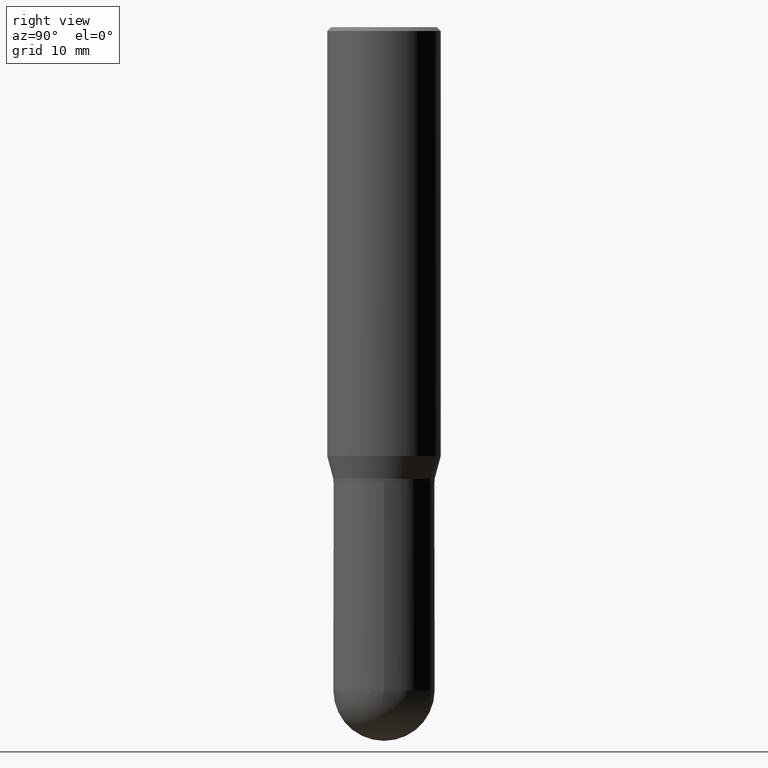
[diagram: clean part render]
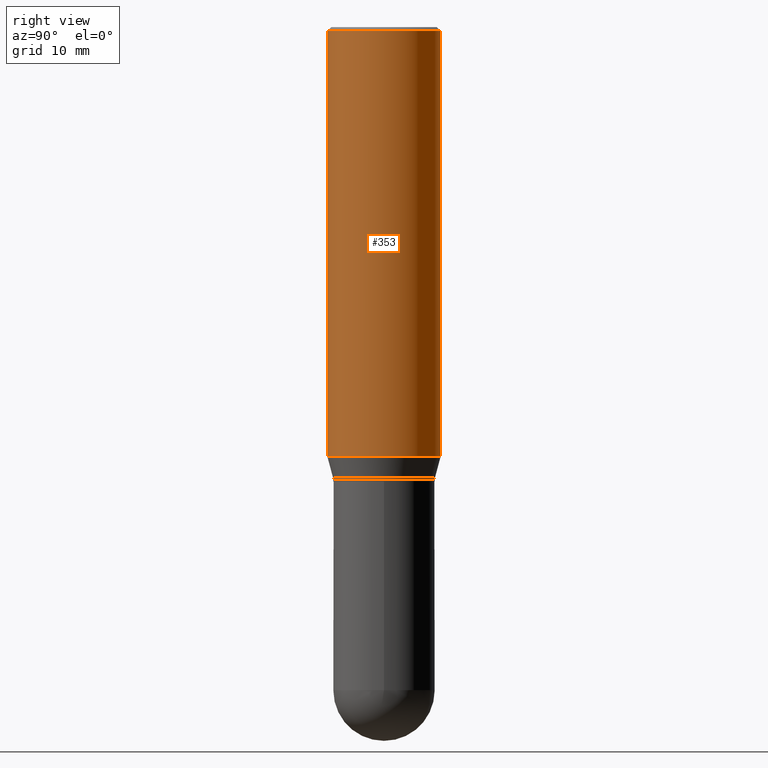
[diagram: same view with one face highlighted and labeled with its STEP entity id]
A machine part, right view. The second image highlights one B-rep face of the part: STEP entity #353.
In plain terms, the highlighted cylindrical surface (partial cylindrical patch) has radius 5.5562 mm, axis along (-0, 0, 1).
Its self-contained STEP definition (entity closure, byte-faithful):
#37 = VERTEX_POINT ( 'NONE', #159 ) ;
#54 = VECTOR ( 'NONE', #158, 39.37007874015748143 ) ;
#64 = CARTESIAN_POINT ( 'NONE',  ( 0.000000000000000000, 0.000000000000000000, 0.000000000000000000 ) ) ;
#69 = AXIS2_PLACEMENT_3D ( 'NONE', #257, #385, #150 ) ;
#96 = ORIENTED_EDGE ( 'NONE', *, *, #192, .T. ) ;
#99 = CARTESIAN_POINT ( 'NONE',  ( 4.041030628052402903E-29, -5.769709499966830493E-15, -1.652483408562509748 ) ) ;
#101 = CYLINDRICAL_SURFACE ( 'NONE', #209, 0.2187500000000000000 ) ;
#130 = VERTEX_POINT ( 'NONE', #263 ) ;
#132 = CARTESIAN_POINT ( 'NONE',  ( 1.554312234475259191E-15, 0.2187499999999998890, -0.01500000000000087721 ) ) ;
#134 = AXIS2_PLACEMENT_3D ( 'NONE', #99, #340, #297 ) ;
#147 = CARTESIAN_POINT ( 'NONE',  ( 1.554312234475218762E-15, 0.2187500000000000000, -7.637740546004402196E-16 ) ) ;
#150 = DIRECTION ( 'NONE',  ( -6.982962677686265133E-15, -1.000000000000000000, 3.492862791899308071E-15 ) ) ;
#153 = CARTESIAN_POINT ( 'NONE',  ( -1.527523085743870449E-15, -0.2187500000000000000, 7.637740546004402196E-16 ) ) ;
#158 = DIRECTION ( 'NONE',  ( -2.445428866101404162E-29, 3.491538535316297921E-15, 1.000000000000000000 ) ) ;
#159 = CARTESIAN_POINT ( 'NONE',  ( -1.527523085743830414E-15, -0.2187500000000058009, -1.652483408562509082 ) ) ;
#179 = VECTOR ( 'NONE', #306, 39.37007874015748143 ) ;
#185 = ORIENTED_EDGE ( 'NONE', *, *, #305, .F. ) ;
#191 = LINE ( 'NONE', #147, #179 ) ;
#192 = EDGE_CURVE ( 'NONE', #37, #363, #470, .T. ) ;
#208 = DIRECTION ( 'NONE',  ( -6.982962677686265133E-15, -1.000000000000000000, 3.491538535316298316E-15 ) ) ;
#209 = AXIS2_PLACEMENT_3D ( 'NONE', #64, #387, #208 ) ;
#257 = CARTESIAN_POINT ( 'NONE',  ( 3.668143299152134304E-31, -5.237307802974486843E-17, -0.01500000000000011394 ) ) ;
#263 = CARTESIAN_POINT ( 'NONE',  ( -1.527523085743870054E-15, -0.2187500000000000555, -0.01499999999999934892 ) ) ;
#280 = ORIENTED_EDGE ( 'NONE', *, *, #507, .T. ) ;
#297 = DIRECTION ( 'NONE',  ( -6.982962677686265133E-15, -1.000000000000000000, 3.746534391310989557E-15 ) ) ;
#305 = EDGE_CURVE ( 'NONE', #130, #449, #475, .T. ) ;
#306 = DIRECTION ( 'NONE',  ( -2.445428866101404162E-29, 3.491538535316297921E-15, 1.000000000000000000 ) ) ;
#319 = EDGE_CURVE ( 'NONE', #37, #130, #503, .T. ) ;
#340 = DIRECTION ( 'NONE',  ( -2.445428866101404443E-29, 3.491538535316298316E-15, 1.000000000000000000 ) ) ;
#353 = ADVANCED_FACE ( 'NONE', ( #455 ), #101, .T. ) ;
#357 = ORIENTED_EDGE ( 'NONE', *, *, #319, .F. ) ;
#360 = EDGE_LOOP ( 'NONE', ( #96, #280, #185, #357 ) ) ;
#363 = VERTEX_POINT ( 'NONE', #405 ) ;
#385 = DIRECTION ( 'NONE',  ( -2.445428866101404443E-29, 3.491538535316298316E-15, 1.000000000000000000 ) ) ;
#387 = DIRECTION ( 'NONE',  ( -2.445428866101404443E-29, 3.491538535316298316E-15, 1.000000000000000000 ) ) ;
#405 = CARTESIAN_POINT ( 'NONE',  ( 1.554312234475258797E-15, 0.2187499999999941713, -1.652483408562510636 ) ) ;
#449 = VERTEX_POINT ( 'NONE', #132 ) ;
#455 = FACE_OUTER_BOUND ( 'NONE', #360, .T. ) ;
#470 = CIRCLE ( 'NONE', #134, 0.2187500000000000000 ) ;
#475 = CIRCLE ( 'NONE', #69, 0.2187500000000000000 ) ;
#503 = LINE ( 'NONE', #153, #54 ) ;
#507 = EDGE_CURVE ( 'NONE', #363, #449, #191, .T. ) ;